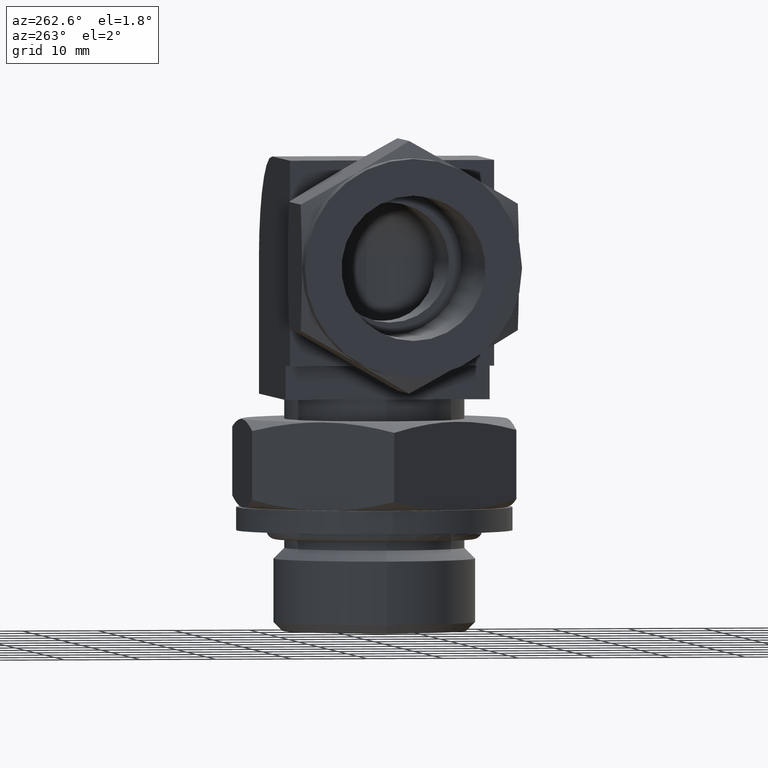
[diagram: clean part render]
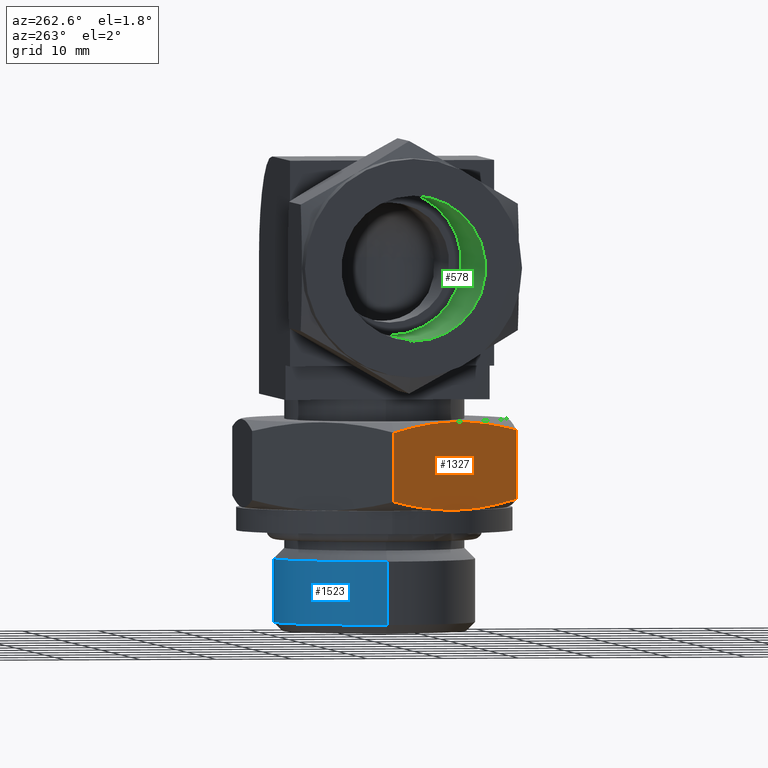
[diagram: same view with three faces highlighted in distinct colors, each labeled with its STEP entity id]
A machine part, auxiliary view with three faces highlighted in distinct colors.
Their STEP definitions:

[orange] entity #1327 — the highlighted planar face has unit normal (-0.866, -0.5, -0).
#5 = EDGE_CURVE ( 'NONE', #1015, #671, #2247, .T. ) ;
#47 = EDGE_CURVE ( 'NONE', #671, #1660, #267, .T. ) ;
#85 = CARTESIAN_POINT ( 'NONE',  ( 29.79602092427619908, -17.46249999999999858, -32.51200000000000045 ) ) ;
#92 = CARTESIAN_POINT ( 'NONE',  ( 29.79602092427619908, -17.46249999999999858, -31.25228937579469601 ) ) ;
#105 = VERTEX_POINT ( 'NONE', #985 ) ;
#233 = CARTESIAN_POINT ( 'NONE',  ( 19.71404184855230213, 2.819966482547900216E-15, -32.51200000000000045 ) ) ;
#256 = EDGE_LOOP ( 'NONE', ( #1907, #1444, #2113, #1164, #763, #1720 ) ) ;
#267 =( BOUNDED_CURVE ( )  B_SPLINE_CURVE ( 2, ( #2088, #1617, #1581 ),
 .UNSPECIFIED., .F., .T. ) 
 B_SPLINE_CURVE_WITH_KNOTS ( ( 3, 3 ),
 ( 0.4006919385896450247, 0.8013838771792910487 ),
 .UNSPECIFIED. ) 
 CURVE ( )  GEOMETRIC_REPRESENTATION_ITEM ( )  RATIONAL_B_SPLINE_CURVE ( ( 1.000000000000000000, 1.037954849302039850, 1.000000000000000000 ) ) 
 REPRESENTATION_ITEM ( '' )  );
#479 = CARTESIAN_POINT ( 'NONE',  ( 22.41550000000002996, -4.679062772828419980, -32.51200000000002888 ) ) ;
#597 = AXIS2_PLACEMENT_3D ( 'NONE', #2176, #617, #2381 ) ;
#617 = DIRECTION ( 'NONE',  ( -0.8660254037844387076, -0.4999999999999998890, -1.922962686383559379E-16 ) ) ;
#622 = DIRECTION ( 'NONE',  ( -2.220446049250309876E-16, 0.000000000000000000, 1.000000000000000000 ) ) ;
#653 = CARTESIAN_POINT ( 'NONE',  ( 24.75503138641429857, -8.731249999999999289, -32.51200000000000045 ) ) ;
#671 = VERTEX_POINT ( 'NONE', #2427 ) ;
#746 = CARTESIAN_POINT ( 'NONE',  ( 24.75503138641419909, -8.731249999999999289, -20.92960000000000065 ) ) ;
#763 = ORIENTED_EDGE ( 'NONE', *, *, #47, .T. ) ;
#985 = CARTESIAN_POINT ( 'NONE',  ( 29.79602092427619908, -17.46249999999999858, -31.25228937579469601 ) ) ;
#1015 = VERTEX_POINT ( 'NONE', #2355 ) ;
#1020 = FACE_OUTER_BOUND ( 'NONE', #256, .T. ) ;
#1057 = CARTESIAN_POINT ( 'NONE',  ( 27.09456277282852099, -12.78343722717159459, -32.51200000000000756 ) ) ;
#1136 =( BOUNDED_CURVE ( )  B_SPLINE_CURVE ( 2, ( #2055, #479, #2229 ),
 .UNSPECIFIED., .F., .T. ) 
 B_SPLINE_CURVE_WITH_KNOTS ( ( 3, 3 ),
 ( 0.000000000000000000, 0.4006919385896470232 ),
 .UNSPECIFIED. ) 
 CURVE ( )  GEOMETRIC_REPRESENTATION_ITEM ( )  RATIONAL_B_SPLINE_CURVE ( ( 1.000000000000000000, 1.037954849302059834, 1.000000000000000000 ) ) 
 REPRESENTATION_ITEM ( '' )  );
#1164 = ORIENTED_EDGE ( 'NONE', *, *, #5, .T. ) ;
#1191 = CARTESIAN_POINT ( 'NONE',  ( 19.71404184855230213, 2.678968158420499703E-14, -31.25228937579469601 ) ) ;
#1251 = DIRECTION ( 'NONE',  ( -2.220446049250309876E-16, 0.000000000000000000, 1.000000000000000000 ) ) ;
#1282 =( BOUNDED_CURVE ( )  B_SPLINE_CURVE ( 2, ( #1433, #1057, #92 ),
 .UNSPECIFIED., .F., .T. ) 
 B_SPLINE_CURVE_WITH_KNOTS ( ( 3, 3 ),
 ( 0.4006919385896470232, 0.8013838771792930471 ),
 .UNSPECIFIED. ) 
 CURVE ( )  GEOMETRIC_REPRESENTATION_ITEM ( )  RATIONAL_B_SPLINE_CURVE ( ( 1.000000000000000000, 1.037954849302069826, 1.000000000000000000 ) ) 
 REPRESENTATION_ITEM ( '' )  );
#1327 = ADVANCED_FACE ( 'NONE', ( #1020 ), #1414, .T. ) ;
#1414 = PLANE ( 'NONE',  #597 ) ;
#1421 = EDGE_CURVE ( 'NONE', #105, #1015, #1856, .T. ) ;
#1433 = CARTESIAN_POINT ( 'NONE',  ( 24.75503138641429857, -8.731249999999999289, -32.51200000000000045 ) ) ;
#1444 = ORIENTED_EDGE ( 'NONE', *, *, #2077, .T. ) ;
#1550 = VERTEX_POINT ( 'NONE', #653 ) ;
#1581 = CARTESIAN_POINT ( 'NONE',  ( 19.71404184855230213, 7.713248171896801393E-17, -22.18931062420530154 ) ) ;
#1617 = CARTESIAN_POINT ( 'NONE',  ( 22.41550000000002640, -4.679062772828461725, -20.92960000000002907 ) ) ;
#1660 = VERTEX_POINT ( 'NONE', #2021 ) ;
#1720 = ORIENTED_EDGE ( 'NONE', *, *, #1911, .F. ) ;
#1856 = LINE ( 'NONE', #85, #2082 ) ;
#1865 = VERTEX_POINT ( 'NONE', #1191 ) ;
#1907 = ORIENTED_EDGE ( 'NONE', *, *, #2382, .T. ) ;
#1911 = EDGE_CURVE ( 'NONE', #1865, #1660, #2348, .T. ) ;
#2021 = CARTESIAN_POINT ( 'NONE',  ( 19.71404184855230213, 7.713248171896801393E-17, -22.18931062420530154 ) ) ;
#2051 = VECTOR ( 'NONE', #622, 1000.000000000000000 ) ;
#2055 = CARTESIAN_POINT ( 'NONE',  ( 19.71404184855230213, 2.678968158420499703E-14, -31.25228937579469601 ) ) ;
#2074 = CARTESIAN_POINT ( 'NONE',  ( 29.79602092427619908, -17.46249999999999858, -22.18931062420530154 ) ) ;
#2077 = EDGE_CURVE ( 'NONE', #1550, #105, #1282, .T. ) ;
#2082 = VECTOR ( 'NONE', #1251, 1000.000000000000000 ) ;
#2088 = CARTESIAN_POINT ( 'NONE',  ( 24.75503138641419909, -8.731249999999999289, -20.92960000000000065 ) ) ;
#2113 = ORIENTED_EDGE ( 'NONE', *, *, #1421, .T. ) ;
#2176 = CARTESIAN_POINT ( 'NONE',  ( 29.79602092427619908, -17.46249999999999858, -32.51200000000000045 ) ) ;
#2229 = CARTESIAN_POINT ( 'NONE',  ( 24.75503138641429857, -8.731249999999999289, -32.51200000000000045 ) ) ;
#2247 =( BOUNDED_CURVE ( )  B_SPLINE_CURVE ( 2, ( #2074, #2268, #746 ),
 .UNSPECIFIED., .F., .T. ) 
 B_SPLINE_CURVE_WITH_KNOTS ( ( 3, 3 ),
 ( 0.000000000000000000, 0.4006919385896449692 ),
 .UNSPECIFIED. ) 
 CURVE ( )  GEOMETRIC_REPRESENTATION_ITEM ( )  RATIONAL_B_SPLINE_CURVE ( ( 1.000000000000000000, 1.037954849302019866, 1.000000000000000000 ) ) 
 REPRESENTATION_ITEM ( '' )  );
#2268 = CARTESIAN_POINT ( 'NONE',  ( 27.09456277282852810, -12.78343722717149511, -20.92960000000000065 ) ) ;
#2348 = LINE ( 'NONE', #233, #2051 ) ;
#2355 = CARTESIAN_POINT ( 'NONE',  ( 29.79602092427619908, -17.46249999999999858, -22.18931062420530154 ) ) ;
#2381 = DIRECTION ( 'NONE',  ( -0.4999999999999998890, 0.8660254037844387076, 0.000000000000000000 ) ) ;
#2382 = EDGE_CURVE ( 'NONE', #1865, #1550, #1136, .T. ) ;
#2427 = CARTESIAN_POINT ( 'NONE',  ( 24.75503138641419909, -8.731249999999999289, -20.92960000000000065 ) ) ;

[blue] entity #1523 — the highlighted cylindrical surface (partial cylindrical patch) has radius 13.2205 mm, axis along (-0, 0, 1).
#17 = VERTEX_POINT ( 'NONE', #1530 ) ;
#71 = CARTESIAN_POINT ( 'NONE',  ( 26.65749999999999886, 1.301725938954340114E-15, -39.29350000000000165 ) ) ;
#76 = VERTEX_POINT ( 'NONE', #71 ) ;
#95 = FACE_OUTER_BOUND ( 'NONE', #1501, .T. ) ;
#137 = CARTESIAN_POINT ( 'NONE',  ( 39.87800000000000011, 0.000000000000000000, -43.44975000000000165 ) ) ;
#146 = ORIENTED_EDGE ( 'NONE', *, *, #744, .T. ) ;
#186 = DIRECTION ( 'NONE',  ( -1.110223024625159992E-16, 0.000000000000000000, 1.000000000000000000 ) ) ;
#191 = CARTESIAN_POINT ( 'NONE',  ( 53.09850000000000136, -1.618990830070870035E-15, -43.44975000000000165 ) ) ;
#328 = EDGE_CURVE ( 'NONE', #1846, #76, #1892, .T. ) ;
#433 = CARTESIAN_POINT ( 'NONE',  ( 26.65749999999999886, 1.810702954761769803E-15, -47.60600000000000165 ) ) ;
#461 = DIRECTION ( 'NONE',  ( -1.000000000000000000, 0.000000000000000000, 0.000000000000000000 ) ) ;
#488 = DIRECTION ( 'NONE',  ( -1.000000000000000000, 0.000000000000000000, 0.000000000000000000 ) ) ;
#554 = DIRECTION ( 'NONE',  ( 1.110223024625159992E-16, 0.000000000000000000, -1.000000000000000000 ) ) ;
#703 = EDGE_CURVE ( 'NONE', #17, #76, #1199, .T. ) ;
#744 = EDGE_CURVE ( 'NONE', #2300, #1846, #1000, .T. ) ;
#814 = ORIENTED_EDGE ( 'NONE', *, *, #2148, .T. ) ;
#828 = CARTESIAN_POINT ( 'NONE',  ( 53.09850000000000136, -1.618990830070870035E-15, -47.60600000000000165 ) ) ;
#864 = CARTESIAN_POINT ( 'NONE',  ( 39.87800000000000011, 0.000000000000000000, -47.60600000000000165 ) ) ;
#865 = CYLINDRICAL_SURFACE ( 'NONE', #967, 13.22049999999999947 ) ;
#967 = AXIS2_PLACEMENT_3D ( 'NONE', #137, #1437, #1628 ) ;
#1000 = CIRCLE ( 'NONE', #1286, 13.22049999999999947 ) ;
#1084 = CARTESIAN_POINT ( 'NONE',  ( 39.87800000000000011, 0.000000000000000000, -39.29350000000000165 ) ) ;
#1119 = VECTOR ( 'NONE', #186, 1000.000000000000000 ) ;
#1166 = LINE ( 'NONE', #191, #1172 ) ;
#1172 = VECTOR ( 'NONE', #554, 1000.000000000000000 ) ;
#1199 = CIRCLE ( 'NONE', #1803, 13.22049999999999947 ) ;
#1286 = AXIS2_PLACEMENT_3D ( 'NONE', #864, #1836, #488 ) ;
#1437 = DIRECTION ( 'NONE',  ( -1.110223024625159992E-16, 0.000000000000000000, 1.000000000000000000 ) ) ;
#1501 = EDGE_LOOP ( 'NONE', ( #2440, #1705, #814, #146 ) ) ;
#1523 = ADVANCED_FACE ( 'NONE', ( #95 ), #865, .T. ) ;
#1530 = CARTESIAN_POINT ( 'NONE',  ( 53.09850000000000136, -1.618990830070870035E-15, -39.29350000000000165 ) ) ;
#1542 = CARTESIAN_POINT ( 'NONE',  ( 26.65749999999999886, 1.618990830070870035E-15, -43.44975000000000165 ) ) ;
#1628 = DIRECTION ( 'NONE',  ( -1.000000000000000000, 0.000000000000000000, 0.000000000000000000 ) ) ;
#1705 = ORIENTED_EDGE ( 'NONE', *, *, #703, .F. ) ;
#1803 = AXIS2_PLACEMENT_3D ( 'NONE', #1084, #1824, #461 ) ;
#1824 = DIRECTION ( 'NONE',  ( -1.110223024625159992E-16, 0.000000000000000000, 1.000000000000000000 ) ) ;
#1836 = DIRECTION ( 'NONE',  ( -1.110223024625159992E-16, 0.000000000000000000, 1.000000000000000000 ) ) ;
#1846 = VERTEX_POINT ( 'NONE', #433 ) ;
#1892 = LINE ( 'NONE', #1542, #1119 ) ;
#2148 = EDGE_CURVE ( 'NONE', #17, #2300, #1166, .T. ) ;
#2300 = VERTEX_POINT ( 'NONE', #828 ) ;
#2440 = ORIENTED_EDGE ( 'NONE', *, *, #328, .T. ) ;

[green] entity #578 — the highlighted cylindrical surface (partial cylindrical patch) has radius 9.525 mm, axis along (1, 0, 0).
#139 = CARTESIAN_POINT ( 'NONE',  ( 12.19200000000000017, -1.166437552015810118E-15, -9.525000000000000355 ) ) ;
#171 = DIRECTION ( 'NONE',  ( 1.000000000000000000, 0.000000000000000000, 6.123031769111888756E-17 ) ) ;
#212 = CARTESIAN_POINT ( 'NONE',  ( 12.19200000000000017, 0.000000000000000000, 7.465200332901210551E-16 ) ) ;
#275 = DIRECTION ( 'NONE',  ( 1.000000000000000000, 0.000000000000000000, 6.123031769111888756E-17 ) ) ;
#276 = CIRCLE ( 'NONE', #1690, 9.525000000000000355 ) ;
#329 = LINE ( 'NONE', #2379, #1806 ) ;
#363 = VECTOR ( 'NONE', #2036, 1000.000000000000000 ) ;
#369 = CIRCLE ( 'NONE', #2054, 9.525000000000000355 ) ;
#578 = ADVANCED_FACE ( 'NONE', ( #1220 ), #2340, .F. ) ;
#588 = VERTEX_POINT ( 'NONE', #2160 ) ;
#659 = ORIENTED_EDGE ( 'NONE', *, *, #1349, .T. ) ;
#704 = VERTEX_POINT ( 'NONE', #2378 ) ;
#758 = DIRECTION ( 'NONE',  ( 6.123031769111891221E-17, 0.000000000000000000, -1.000000000000000000 ) ) ;
#929 = ORIENTED_EDGE ( 'NONE', *, *, #1534, .T. ) ;
#949 = VERTEX_POINT ( 'NONE', #2385 ) ;
#1132 = VERTEX_POINT ( 'NONE', #1307 ) ;
#1192 = DIRECTION ( 'NONE',  ( 0.000000000000000000, 0.000000000000000000, -1.000000000000000000 ) ) ;
#1210 = DIRECTION ( 'NONE',  ( 0.000000000000000000, 0.000000000000000000, -1.000000000000000000 ) ) ;
#1220 = FACE_OUTER_BOUND ( 'NONE', #2204, .T. ) ;
#1230 = ORIENTED_EDGE ( 'NONE', *, *, #1415, .T. ) ;
#1307 = CARTESIAN_POINT ( 'NONE',  ( 24.38400000000000034, 0.000000000000000000, -9.525000000000000355 ) ) ;
#1349 = EDGE_CURVE ( 'NONE', #949, #1132, #276, .T. ) ;
#1378 = DIRECTION ( 'NONE',  ( 1.000000000000000000, 0.000000000000000000, 6.123031769111888756E-17 ) ) ;
#1385 = DIRECTION ( 'NONE',  ( 1.000000000000000000, 0.000000000000000000, 6.123031769111888756E-17 ) ) ;
#1415 = EDGE_CURVE ( 'NONE', #1132, #704, #1839, .T. ) ;
#1443 = AXIS2_PLACEMENT_3D ( 'NONE', #212, #1385, #1192 ) ;
#1534 = EDGE_CURVE ( 'NONE', #588, #949, #329, .T. ) ;
#1690 = AXIS2_PLACEMENT_3D ( 'NONE', #2343, #1378, #1210 ) ;
#1782 = ORIENTED_EDGE ( 'NONE', *, *, #2192, .F. ) ;
#1806 = VECTOR ( 'NONE', #275, 1000.000000000000000 ) ;
#1839 = LINE ( 'NONE', #139, #363 ) ;
#1899 = CARTESIAN_POINT ( 'NONE',  ( -2.819966482547900216E-15, 0.000000000000000000, -1.565395858797950031E-31 ) ) ;
#2036 = DIRECTION ( 'NONE',  ( -1.000000000000000000, 0.000000000000000000, -6.123031769111888756E-17 ) ) ;
#2054 = AXIS2_PLACEMENT_3D ( 'NONE', #1899, #171, #758 ) ;
#2160 = CARTESIAN_POINT ( 'NONE',  ( -5.667688540711419879E-15, 1.166437552015810118E-15, 9.525000000000000355 ) ) ;
#2192 = EDGE_CURVE ( 'NONE', #588, #704, #369, .T. ) ;
#2204 = EDGE_LOOP ( 'NONE', ( #1230, #1782, #929, #659 ) ) ;
#2340 = CYLINDRICAL_SURFACE ( 'NONE', #1443, 9.525000000000000355 ) ;
#2343 = CARTESIAN_POINT ( 'NONE',  ( 24.38400000000000034, 0.000000000000000000, 1.493040066580239941E-15 ) ) ;
#2378 = CARTESIAN_POINT ( 'NONE',  ( 5.832187760079070312E-16, 0.000000000000000000, -9.525000000000000355 ) ) ;
#2379 = CARTESIAN_POINT ( 'NONE',  ( 12.19200000000000017, 1.166437552015810118E-15, 9.525000000000000355 ) ) ;
#2385 = CARTESIAN_POINT ( 'NONE',  ( 24.38400000000000034, 1.166437552015810118E-15, 9.525000000000000355 ) ) ;